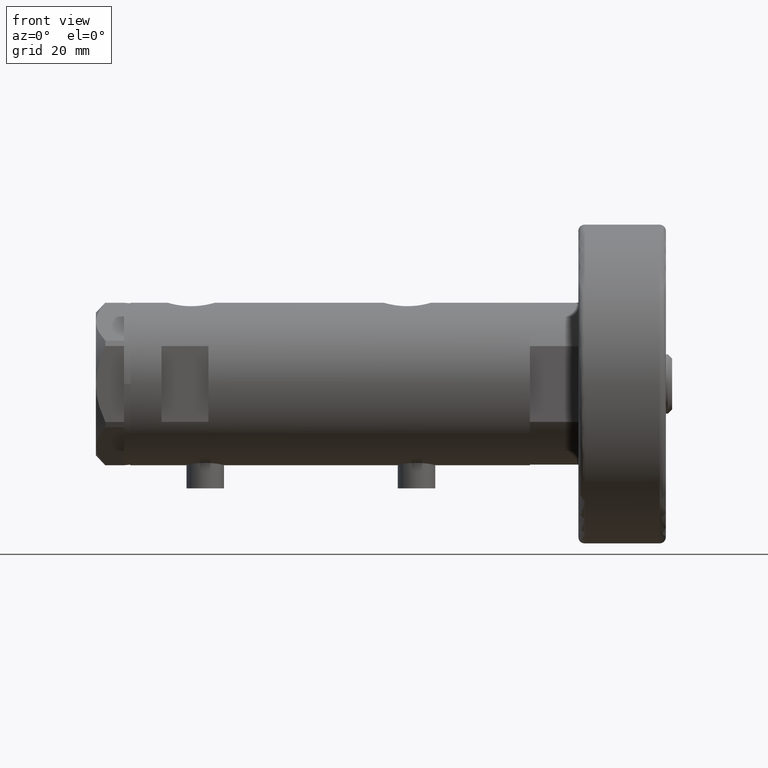
[diagram: clean part render]
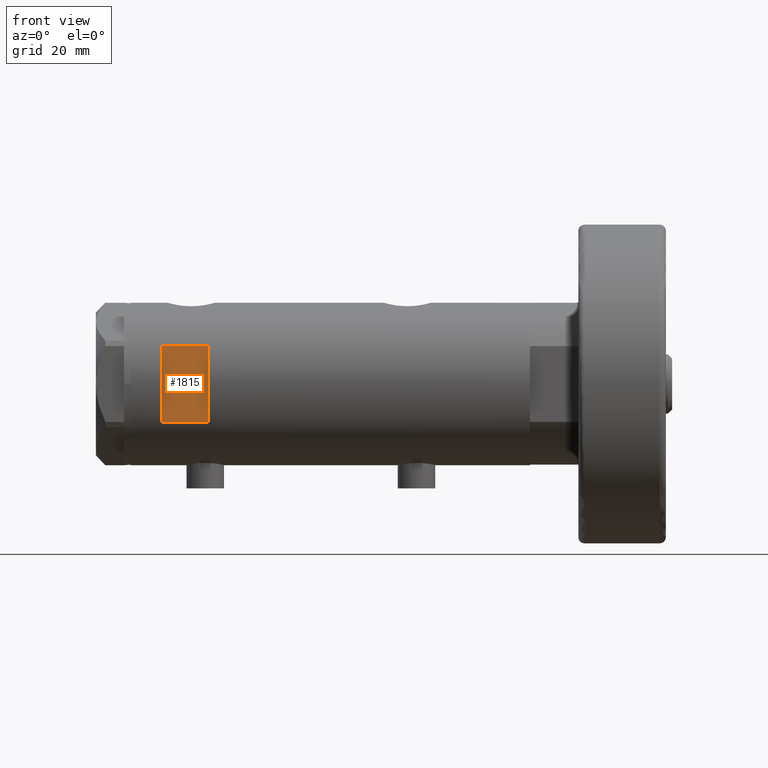
[diagram: same view with one face highlighted and labeled with its STEP entity id]
A machine part, front view. The second image highlights one B-rep face of the part: STEP entity #1815.
In plain terms, the highlighted planar face has unit normal (-0, 1, 0).
Its self-contained STEP definition (entity closure, byte-faithful):
#160 = CARTESIAN_POINT ( 'NONE',  ( -26.00000000000000355, -23.00000000000000355, 53.94999999999999574 ) ) ;
#487 = DIRECTION ( 'NONE',  ( 1.000000000000000000, -0.000000000000000000, -0.000000000000000000 ) ) ;
#673 = VERTEX_POINT ( 'NONE', #1795 ) ;
#988 = VERTEX_POINT ( 'NONE', #3517 ) ;
#1323 = FACE_OUTER_BOUND ( 'NONE', #2664, .T. ) ;
#1353 = CARTESIAN_POINT ( 'NONE',  ( -26.00000000000000355, -23.00000000000000355, 53.94999999999999574 ) ) ;
#1795 = CARTESIAN_POINT ( 'NONE',  ( -12.12435565298214080, -23.00000000000000355, 53.94999999999999574 ) ) ;
#1799 = VECTOR ( 'NONE', #4584, 1000.000000000000000 ) ;
#1815 = ADVANCED_FACE ( 'NONE', ( #1323 ), #2542, .F. ) ;
#1965 = VECTOR ( 'NONE', #4017, 1000.000000000000000 ) ;
#2252 = VERTEX_POINT ( 'NONE', #2926 ) ;
#2276 = EDGE_CURVE ( 'NONE', #2252, #3147, #3454, .T. ) ;
#2542 = PLANE ( 'NONE',  #2781 ) ;
#2596 = ORIENTED_EDGE ( 'NONE', *, *, #4486, .T. ) ;
#2664 = EDGE_LOOP ( 'NONE', ( #2596, #2791, #3415, #3704 ) ) ;
#2781 = AXIS2_PLACEMENT_3D ( 'NONE', #1353, #4254, #4164 ) ;
#2791 = ORIENTED_EDGE ( 'NONE', *, *, #2276, .T. ) ;
#2799 = VECTOR ( 'NONE', #4641, 1000.000000000000000 ) ;
#2926 = CARTESIAN_POINT ( 'NONE',  ( -12.12435565298214080, -23.00000000000000355, 38.94999999999999574 ) ) ;
#3147 = VERTEX_POINT ( 'NONE', #4026 ) ;
#3211 = CARTESIAN_POINT ( 'NONE',  ( -12.12435565298214080, -23.00000000000000355, -63.95000000000000995 ) ) ;
#3333 = EDGE_CURVE ( 'NONE', #673, #988, #3411, .T. ) ;
#3411 = LINE ( 'NONE', #160, #1799 ) ;
#3413 = LINE ( 'NONE', #3464, #2799 ) ;
#3415 = ORIENTED_EDGE ( 'NONE', *, *, #5025, .T. ) ;
#3454 = LINE ( 'NONE', #4976, #4484 ) ;
#3464 = CARTESIAN_POINT ( 'NONE',  ( 12.12435565298214080, -23.00000000000000355, -63.95000000000000995 ) ) ;
#3517 = CARTESIAN_POINT ( 'NONE',  ( 12.12435565298214080, -23.00000000000000355, 53.94999999999999574 ) ) ;
#3644 = LINE ( 'NONE', #3211, #1965 ) ;
#3704 = ORIENTED_EDGE ( 'NONE', *, *, #3333, .F. ) ;
#4017 = DIRECTION ( 'NONE',  ( -0.000000000000000000, -0.000000000000000000, -1.000000000000000000 ) ) ;
#4026 = CARTESIAN_POINT ( 'NONE',  ( 12.12435565298214080, -23.00000000000000355, 38.94999999999999574 ) ) ;
#4164 = DIRECTION ( 'NONE',  ( 0.000000000000000000, -0.000000000000000000, 1.000000000000000000 ) ) ;
#4254 = DIRECTION ( 'NONE',  ( 0.000000000000000000, 1.000000000000000000, 0.000000000000000000 ) ) ;
#4484 = VECTOR ( 'NONE', #487, 1000.000000000000000 ) ;
#4486 = EDGE_CURVE ( 'NONE', #673, #2252, #3644, .T. ) ;
#4584 = DIRECTION ( 'NONE',  ( 1.000000000000000000, -0.000000000000000000, -0.000000000000000000 ) ) ;
#4641 = DIRECTION ( 'NONE',  ( 0.000000000000000000, 0.000000000000000000, 1.000000000000000000 ) ) ;
#4976 = CARTESIAN_POINT ( 'NONE',  ( -26.00000000000000355, -23.00000000000000355, 38.94999999999999574 ) ) ;
#5025 = EDGE_CURVE ( 'NONE', #3147, #988, #3413, .T. ) ;